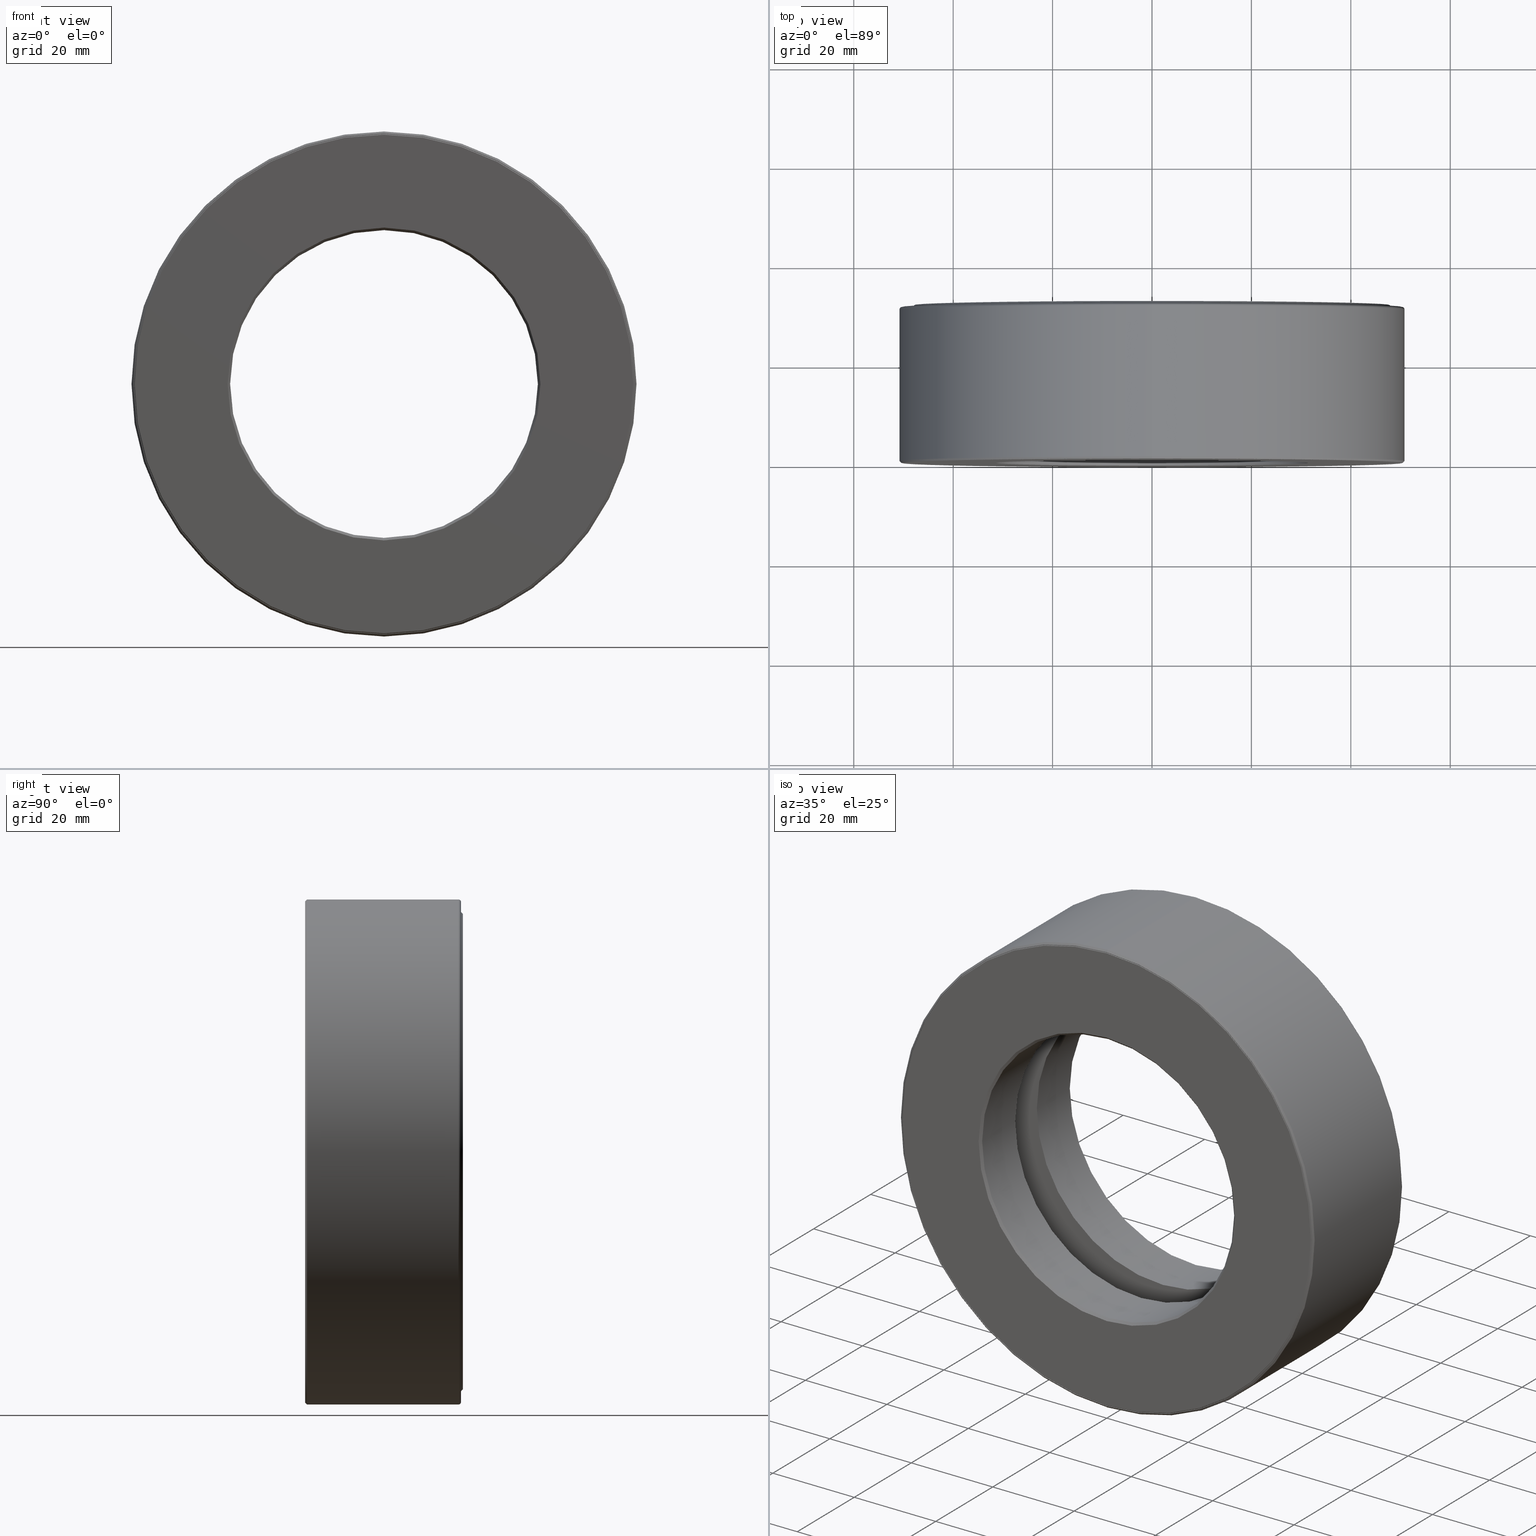
[diagram: canonical four-view strip — front | top / right | iso, engineering-drawing reading convention]
A machine part, canonical four-view strip (front | top / right | iso — engineering-drawing reading convention). The complete STEP part file that produces these views, byte-faithful:
ISO-10303-21;
HEADER;
FILE_DESCRIPTION (( 'STEP AP203' ),
    '1' );
FILE_NAME ('T-100-41.step',
    '2016-06-29T18:27:36',
    ( '' ),
    ( '' ),
    'SwSTEP 2.0',
    'SolidWorks 2016',
    '' );
FILE_SCHEMA (( 'CONFIG_CONTROL_DESIGN' ));
ENDSEC;

DATA;
#1 = PLANE ( 'NONE',  #319 ) ;
#2 = AXIS2_PLACEMENT_3D ( 'NONE', #472, #188, #515 ) ;
#3 = CARTESIAN_POINT ( 'NONE',  ( 0.0000000000000000000, 0.0000000000000000000, 0.0000000000000000000 ) ) ;
#4 = CARTESIAN_POINT ( 'NONE',  ( 0.0000000000000000000, 1.235000000000000100, 0.0000000000000000000 ) ) ;
#5 = AXIS2_PLACEMENT_3D ( 'NONE', #183, #466, #86 ) ;
#6 = DIRECTION ( 'NONE',  ( -0.0000000000000000000, 1.000000000000000000, -0.0000000000000000000 ) ) ;
#7 = DIRECTION ( 'NONE',  ( -0.0000000000000000000, 1.000000000000000000, -0.0000000000000000000 ) ) ;
#8 = FACE_BOUND ( 'NONE', #208, .T. ) ;
#9 = CARTESIAN_POINT ( 'NONE',  ( 0.0000000000000000000, 0.4749999999999999800, 1.520999999999999900 ) ) ;
#10 = DIRECTION ( 'NONE',  ( -0.0000000000000000000, 1.000000000000000000, -0.0000000000000000000 ) ) ;
#11 = ORIENTED_EDGE ( 'NONE', *, *, #304, .F. ) ;
#12 = DIRECTION ( 'NONE',  ( -0.0000000000000000000, 1.000000000000000000, -0.0000000000000000000 ) ) ;
#13 = CARTESIAN_POINT ( 'NONE',  ( 0.0000000000000000000, 1.235000000000000100, 1.980000000000000000 ) ) ;
#14 = DIRECTION ( 'NONE',  ( -0.0000000000000000000, 1.000000000000000000, 0.0000000000000000000 ) ) ;
#15 = FACE_OUTER_BOUND ( 'NONE', #377, .T. ) ;
#16 = CARTESIAN_POINT ( 'NONE',  ( 0.0000000000000000000, 1.250000000000000000, 0.0000000000000000000 ) ) ;
#17 = AXIS2_PLACEMENT_3D ( 'NONE', #475, #196, #285 ) ;
#18 = ORIENTED_EDGE ( 'NONE', *, *, #338, .T. ) ;
#19 = DIRECTION ( 'NONE',  ( -3.491481338843134500E-015, 0.0000000000000000000, -1.000000000000000000 ) ) ;
#20 = APPROVAL_PERSON_ORGANIZATION ( #218, #25, #468 ) ;
#21 = CARTESIAN_POINT ( 'NONE',  ( 0.0000000000000000000, 0.7749999999999999100, 0.0000000000000000000 ) ) ;
#22 = VERTEX_POINT ( 'NONE', #387 ) ;
#23 = CIRCLE ( 'NONE', #275, 1.218750000000000000 ) ;
#24 = ADVANCED_FACE ( 'NONE', ( #460, #233 ), #215, .F. ) ;
#25 = APPROVAL ( #321, 'UNSPECIFIED' ) ;
#26 = DIRECTION ( 'NONE',  ( -0.0000000000000000000, 1.000000000000000000, -0.0000000000000000000 ) ) ;
#27 = DIRECTION ( 'NONE',  ( 0.0000000000000000000, 0.0000000000000000000, -1.000000000000000000 ) ) ;
#28 = EDGE_LOOP ( 'NONE', ( #11 ) ) ;
#29 = EDGE_LOOP ( 'NONE', ( #525 ) ) ;
#30 = CARTESIAN_POINT ( 'NONE',  ( 0.0000000000000000000, 0.0000000000000000000, 0.0000000000000000000 ) ) ;
#31 = FACE_OUTER_BOUND ( 'NONE', #289, .T. ) ;
#32 = AXIS2_PLACEMENT_3D ( 'NONE', #95, #141, #138 ) ;
#33 = AXIS2_PLACEMENT_3D ( 'NONE', #334, #279, #516 ) ;
#34 = CLOSED_SHELL ( 'NONE', ( #489, #345, #24, #112, #353, #451, #60, #581, #301, #443, #529, #403, #526, #115, #72, #245 ) ) ;
#35 = AXIS2_PLACEMENT_3D ( 'NONE', #324, #281, #474 ) ;
#36 = SHAPE_DEFINITION_REPRESENTATION ( #543, #603 ) ;
#37 = FACE_OUTER_BOUND ( 'NONE', #247, .T. ) ;
#38 = DIRECTION ( 'NONE',  ( 0.0000000000000000000, 0.0000000000000000000, 1.000000000000000000 ) ) ;
#39 = CARTESIAN_POINT ( 'NONE',  ( 0.0000000000000000000, 0.0000000000000000000, 0.0000000000000000000 ) ) ;
#40 = DATE_TIME_ROLE ( 'classification_date' ) ;
#41 = ORIENTED_EDGE ( 'NONE', *, *, #130, .T. ) ;
#42 = ORIENTED_EDGE ( 'NONE', *, *, #542, .F. ) ;
#43 = APPLICATION_PROTOCOL_DEFINITION ( 'international standard', 'config_control_design', 1994, #274 ) ;
#44 = CARTESIAN_POINT ( 'NONE',  ( 0.0000000000000000000, 1.215000000000000100, 0.0000000000000000000 ) ) ;
#45 = FACE_BOUND ( 'NONE', #461, .T. ) ;
#46 = CARTESIAN_POINT ( 'NONE',  ( 0.0000000000000000000, 1.215000000000000100, 0.0000000000000000000 ) ) ;
#47 = AXIS2_PLACEMENT_3D ( 'NONE', #264, #367, #458 ) ;
#48 = ORIENTED_EDGE ( 'NONE', *, *, #431, .F. ) ;
#49 = CARTESIAN_POINT ( 'NONE',  ( 0.0000000000000000000, 1.215000000000000100, 0.0000000000000000000 ) ) ;
#50 = ORIENTED_EDGE ( 'NONE', *, *, #166, .F. ) ;
#51 = CARTESIAN_POINT ( 'NONE',  ( 0.0000000000000000000, 0.005000000000000393000, 0.0000000000000000000 ) ) ;
#52 = PERSON_AND_ORGANIZATION ( #399, #336 ) ;
#53 = FACE_OUTER_BOUND ( 'NONE', #364, .T. ) ;
#54 = DIRECTION ( 'NONE',  ( 0.0000000000000000000, 0.0000000000000000000, 1.000000000000000000 ) ) ;
#55 = DIRECTION ( 'NONE',  ( 0.0000000000000000000, 0.0000000000000000000, 1.000000000000000000 ) ) ;
#56 = SECURITY_CLASSIFICATION ( '', '', #94 ) ;
#57 = ORIENTED_EDGE ( 'NONE', *, *, #366, .T. ) ;
#58 = CARTESIAN_POINT ( 'NONE',  ( 0.0000000000000000000, 0.01499999999999984000, 1.999999999999999300 ) ) ;
#59 = CARTESIAN_POINT ( 'NONE',  ( 0.0000000000000000000, 0.4749999999999999200, 0.0000000000000000000 ) ) ;
#60 = ADVANCED_FACE ( 'NONE', ( #105, #346 ), #126, .T. ) ;
#61 = AXIS2_PLACEMENT_3D ( 'NONE', #491, #400, #254 ) ;
#62 = VERTEX_POINT ( 'NONE', #9 ) ;
#63 = CARTESIAN_POINT ( 'NONE',  ( 0.0000000000000000000, 0.4750000000000001400, 1.218750000000000000 ) ) ;
#64 = CIRCLE ( 'NONE', #368, 1.218750000000000000 ) ;
#65 = FACE_OUTER_BOUND ( 'NONE', #263, .T. ) ;
#66 = CARTESIAN_POINT ( 'NONE',  ( 0.0000000000000000000, 0.0000000000000000000, 0.0000000000000000000 ) ) ;
#67 = EDGE_LOOP ( 'NONE', ( #113 ) ) ;
#68 = ORIENTED_EDGE ( 'NONE', *, *, #104, .F. ) ;
#69 = EDGE_CURVE ( 'NONE', #203, #203, #394, .T. ) ;
#70 = DATE_AND_TIME ( #479, #557 ) ;
#71 = FACE_BOUND ( 'NONE', #531, .T. ) ;
#72 = ADVANCED_FACE ( 'NONE', ( #276, #246 ), #262, .F. ) ;
#73 = AXIS2_PLACEMENT_3D ( 'NONE', #493, #14, #347 ) ;
#74 = DIRECTION ( 'NONE',  ( 0.0000000000000000000, -0.0000000000000000000, -1.000000000000000000 ) ) ;
#75 = DIRECTION ( 'NONE',  ( -0.0000000000000000000, 1.000000000000000000, -0.0000000000000000000 ) ) ;
#76 = EDGE_LOOP ( 'NONE', ( #490 ) ) ;
#77 = PLANE ( 'NONE',  #257 ) ;
#78 = LOCAL_TIME ( 14, 27, 36.00000000000000000, #409 ) ;
#79 = FACE_OUTER_BOUND ( 'NONE', #270, .T. ) ;
#80 = DIRECTION ( 'NONE',  ( 0.0000000000000000000, -0.0000000000000000000, -1.000000000000000000 ) ) ;
#81 = CIRCLE ( 'NONE', #492, 1.972999999999999900 ) ;
#82 = EDGE_LOOP ( 'NONE', ( #605 ) ) ;
#83 = VERTEX_POINT ( 'NONE', #244 ) ;
#84 = CARTESIAN_POINT ( 'NONE',  ( 0.0000000000000000000, 0.7749999999999999100, 1.921000000000000000 ) ) ;
#85 = EDGE_CURVE ( 'NONE', #534, #534, #412, .T. ) ;
#86 = DIRECTION ( 'NONE',  ( 0.0000000000000000000, 0.0000000000000000000, 1.000000000000000000 ) ) ;
#87 = EDGE_LOOP ( 'NONE', ( #596 ) ) ;
#88 = CARTESIAN_POINT ( 'NONE',  ( 0.0000000000000000000, 0.0000000000000000000, 0.0000000000000000000 ) ) ;
#89 = ORIENTED_EDGE ( 'NONE', *, *, #85, .T. ) ;
#90 = CC_DESIGN_APPROVAL ( #25, ( #56 ) ) ;
#91 = CYLINDRICAL_SURFACE ( 'NONE', #465, 1.999999999999999800 ) ;
#92 = DIRECTION ( 'NONE',  ( 0.0000000000000000000, 0.0000000000000000000, 1.000000000000000000 ) ) ;
#93 = CIRCLE ( 'NONE', #548, 1.979999999999999500 ) ;
#94 = SECURITY_CLASSIFICATION_LEVEL ( 'unclassified' ) ;
#95 = CARTESIAN_POINT ( 'NONE',  ( 0.0000000000000000000, 0.0000000000000000000, 0.0000000000000000000 ) ) ;
#96 = MECHANICAL_CONTEXT ( 'NONE', #370, 'mechanical' ) ;
#97 = CARTESIAN_POINT ( 'NONE',  ( 0.0000000000000000000, 0.7749999999999999100, 0.0000000000000000000 ) ) ;
#98 = EDGE_LOOP ( 'NONE', ( #129 ) ) ;
#99 = EDGE_LOOP ( 'NONE', ( #352 ) ) ;
#100 = EDGE_LOOP ( 'NONE', ( #173 ) ) ;
#101 = EDGE_CURVE ( 'NONE', #239, #239, #225, .T. ) ;
#102 = LOCAL_TIME ( 14, 27, 36.00000000000000000, #292 ) ;
#103 = VERTEX_POINT ( 'NONE', #384 ) ;
#104 = EDGE_CURVE ( 'NONE', #311, #311, #585, .T. ) ;
#105 = FACE_OUTER_BOUND ( 'NONE', #28, .T. ) ;
#106 = DIRECTION ( 'NONE',  ( 0.0000000000000000000, 0.0000000000000000000, -1.000000000000000000 ) ) ;
#107 = PERSON_AND_ORGANIZATION ( #399, #336 ) ;
#108 = FACE_OUTER_BOUND ( 'NONE', #199, .T. ) ;
#109 = ADVANCED_FACE ( 'NONE', ( ), #145, .T. ) ;
#110 = DIRECTION ( 'NONE',  ( 6.982962677686269100E-015, -0.0000000000000000000, 1.000000000000000000 ) ) ;
#111 = EDGE_LOOP ( 'NONE', ( #426 ) ) ;
#112 = ADVANCED_FACE ( 'NONE', ( #385, #482 ), #1, .F. ) ;
#113 = ORIENTED_EDGE ( 'NONE', *, *, #69, .T. ) ;
#114 = DIRECTION ( 'NONE',  ( 0.0000000000000000000, 0.0000000000000000000, 1.000000000000000000 ) ) ;
#115 = ADVANCED_FACE ( 'NONE', ( #307, #332 ), #316, .F. ) ;
#116 = AXIS2_PLACEMENT_3D ( 'NONE', #117, #530, #579 ) ;
#117 = CARTESIAN_POINT ( 'NONE',  ( 0.0000000000000000000, -1.013771716398848000E-016, 0.0000000000000000000 ) ) ;
#118 = VERTEX_POINT ( 'NONE', #58 ) ;
#119 = CARTESIAN_POINT ( 'NONE',  ( 0.0000000000000000000, 0.7749999999999999100, 0.0000000000000000000 ) ) ;
#120 = DIRECTION ( 'NONE',  ( 0.0000000000000000000, 0.0000000000000000000, 1.000000000000000000 ) ) ;
#121 = EDGE_LOOP ( 'NONE', ( #139 ) ) ;
#122 = PERSON_AND_ORGANIZATION ( #399, #336 ) ;
#123 = FACE_OUTER_BOUND ( 'NONE', #586, .T. ) ;
#124 = PRODUCT_RELATED_PRODUCT_CATEGORY ( 'detail', '', ( #344 ) ) ;
#125 = PLANE ( 'NONE',  #375 ) ;
#126 = TOROIDAL_SURFACE ( 'NONE', #565, 1.980000000000000000, 0.02000000000000005900 ) ;
#127 = ORIENTED_EDGE ( 'NONE', *, *, #214, .T. ) ;
#128 = DIRECTION ( 'NONE',  ( -0.0000000000000000000, 1.000000000000000000, -0.0000000000000000000 ) ) ;
#129 = ORIENTED_EDGE ( 'NONE', *, *, #322, .F. ) ;
#130 = EDGE_CURVE ( 'NONE', #103, #103, #189, .T. ) ;
#131 = FACE_BOUND ( 'NONE', #576, .T. ) ;
#132 = PLANE ( 'NONE',  #335 ) ;
#133 = CLOSED_SHELL ( 'NONE', ( #109 ) ) ;
#134 = PERSON_AND_ORGANIZATION_ROLE ( 'creator' ) ;
#135 = LOCAL_TIME ( 14, 27, 36.00000000000000000, #259 ) ;
#136 = SPHERICAL_SURFACE ( 'NONE', #167, 0.2500000000000000600 ) ;
#137 = PERSON_AND_ORGANIZATION_ROLE ( 'classification_officer' ) ;
#138 = DIRECTION ( 'NONE',  ( 0.0000000000000000000, 0.0000000000000000000, 1.000000000000000000 ) ) ;
#139 = ORIENTED_EDGE ( 'NONE', *, *, #253, .F. ) ;
#140 = ORIENTED_EDGE ( 'NONE', *, *, #542, .T. ) ;
#141 = DIRECTION ( 'NONE',  ( -0.0000000000000000000, 1.000000000000000000, -0.0000000000000000000 ) ) ;
#142 = PERSON_AND_ORGANIZATION_ROLE ( 'design_supplier' ) ;
#143 = CIRCLE ( 'NONE', #604, 1.520999999999999900 ) ;
#144 = AXIS2_PLACEMENT_3D ( 'NONE', #66, #453, #165 ) ;
#145 = SPHERICAL_SURFACE ( 'NONE', #33, 0.2500000000000000600 ) ;
#146 = ORIENTED_EDGE ( 'NONE', *, *, #253, .T. ) ;
#147 = DIRECTION ( 'NONE',  ( 0.0000000000000000000, 0.0000000000000000000, 1.000000000000000000 ) ) ;
#148 = CARTESIAN_POINT ( 'NONE',  ( 1.721000000000000100, 0.6249999999999998900, -1.201767876829806400E-014 ) ) ;
#149 = APPROVAL_PERSON_ORGANIZATION ( #359, #152, #595 ) ;
#150 = DIRECTION ( 'NONE',  ( -0.0000000000000000000, 1.000000000000000000, -0.0000000000000000000 ) ) ;
#151 = FACE_OUTER_BOUND ( 'NONE', #121, .T. ) ;
#152 = APPROVAL ( #428, 'UNSPECIFIED' ) ;
#153 = CARTESIAN_POINT ( 'NONE',  ( 0.0000000000000000000, 1.250000000000000000, 1.885000000000000000 ) ) ;
#154 = ORIENTED_EDGE ( 'NONE', *, *, #255, .T. ) ;
#155 = DIRECTION ( 'NONE',  ( 0.0000000000000000000, 0.0000000000000000000, -1.000000000000000000 ) ) ;
#156 = ORIENTED_EDGE ( 'NONE', *, *, #284, .F. ) ;
#157 = CARTESIAN_POINT ( 'NONE',  ( 0.0000000000000000000, 1.250000000000000000, 1.238750000000000200 ) ) ;
#158 = ADVANCED_FACE ( 'NONE', ( #65, #545 ), #553, .T. ) ;
#159 = FACE_OUTER_BOUND ( 'NONE', #496, .T. ) ;
#160 = CARTESIAN_POINT ( 'NONE',  ( 0.0000000000000000000, 0.7749999999999999100, 1.520999999999999900 ) ) ;
#161 = DIRECTION ( 'NONE',  ( -0.0000000000000000000, 1.000000000000000000, -0.0000000000000000000 ) ) ;
#162 = AXIS2_PLACEMENT_3D ( 'NONE', #567, #376, #187 ) ;
#163 = PLANE ( 'NONE',  #297 ) ;
#164 = EDGE_LOOP ( 'NONE', ( #512 ) ) ;
#165 = DIRECTION ( 'NONE',  ( 0.0000000000000000000, 0.0000000000000000000, 1.000000000000000000 ) ) ;
#166 = EDGE_CURVE ( 'NONE', #372, #372, #81, .T. ) ;
#167 = AXIS2_PLACEMENT_3D ( 'NONE', #455, #27, #414 ) ;
#168 = FACE_OUTER_BOUND ( 'NONE', #100, .T. ) ;
#169 = ADVANCED_FACE ( 'NONE', ( #561, #437 ), #381, .T. ) ;
#170 = PLANE ( 'NONE',  #73 ) ;
#171 = ADVANCED_FACE ( 'NONE', ( ), #602, .T. ) ;
#172 = DIRECTION ( 'NONE',  ( 0.0000000000000000000, -0.0000000000000000000, -1.000000000000000000 ) ) ;
#173 = ORIENTED_EDGE ( 'NONE', *, *, #304, .T. ) ;
#174 = CIRCLE ( 'NONE', #190, 1.218750000000000000 ) ;
#175 = CARTESIAN_POINT ( 'NONE',  ( 0.0000000000000000000, 0.0000000000000000000, 0.0000000000000000000 ) ) ;
#176 = CARTESIAN_POINT ( 'NONE',  ( 0.0000000000000000000, 1.235000000000000100, 0.0000000000000000000 ) ) ;
#177 = ORIENTED_EDGE ( 'NONE', *, *, #271, .F. ) ;
#178 = DIRECTION ( 'NONE',  ( 0.0000000000000000000, 0.0000000000000000000, 1.000000000000000000 ) ) ;
#179 = ORIENTED_EDGE ( 'NONE', *, *, #448, .F. ) ;
#180 = PERSON_AND_ORGANIZATION ( #399, #336 ) ;
#181 = VERTEX_POINT ( 'NONE', #440 ) ;
#182 = FACE_OUTER_BOUND ( 'NONE', #82, .T. ) ;
#183 = CARTESIAN_POINT ( 'NONE',  ( 0.0000000000000000000, 0.7749999999999999100, 0.0000000000000000000 ) ) ;
#184 = CLOSED_SHELL ( 'NONE', ( #536 ) ) ;
#185 = EDGE_LOOP ( 'NONE', ( #89 ) ) ;
#186 = CIRCLE ( 'NONE', #528, 2.000000000000000000 ) ;
#187 = DIRECTION ( 'NONE',  ( 0.0000000000000000000, 0.0000000000000000000, 1.000000000000000000 ) ) ;
#188 = DIRECTION ( 'NONE',  ( -0.0000000000000000000, 1.000000000000000000, -0.0000000000000000000 ) ) ;
#189 = CIRCLE ( 'NONE', #351, 1.979999999999999500 ) ;
#190 = AXIS2_PLACEMENT_3D ( 'NONE', #250, #12, #386 ) ;
#191 = ORIENTED_EDGE ( 'NONE', *, *, #366, .F. ) ;
#192 = CARTESIAN_POINT ( 'NONE',  ( 0.0000000000000000000, 1.215000000000000100, 1.980000000000000000 ) ) ;
#193 = DIRECTION ( 'NONE',  ( 0.0000000000000000000, 0.0000000000000000000, 1.000000000000000000 ) ) ;
#194 = CALENDAR_DATE ( 2016, 29, 6 ) ;
#195 = AXIS2_PLACEMENT_3D ( 'NONE', #148, #110, #481 ) ;
#196 = DIRECTION ( 'NONE',  ( 0.0000000000000000000, -1.000000000000000000, 0.0000000000000000000 ) ) ;
#197 = CC_DESIGN_DATE_AND_TIME_ASSIGNMENT ( #70, #277, ( #434 ) ) ;
#198 = CARTESIAN_POINT ( 'NONE',  ( 0.0000000000000000000, 1.162000000000000600, 1.972999999999999900 ) ) ;
#199 = EDGE_LOOP ( 'NONE', ( #146 ) ) ;
#200 = ORIENTED_EDGE ( 'NONE', *, *, #101, .T. ) ;
#201 = CARTESIAN_POINT ( 'NONE',  ( 0.0000000000000000000, 1.215000000000000100, 2.000000000000000000 ) ) ;
#202 = DIRECTION ( 'NONE',  ( -0.0000000000000000000, 1.000000000000000000, -0.0000000000000000000 ) ) ;
#203 = VERTEX_POINT ( 'NONE', #192 ) ;
#204 = FACE_OUTER_BOUND ( 'NONE', #510, .T. ) ;
#205 = DIRECTION ( 'NONE',  ( 0.0000000000000000000, 0.0000000000000000000, 1.000000000000000000 ) ) ;
#206 = EDGE_LOOP ( 'NONE', ( #237 ) ) ;
#207 = DIRECTION ( 'NONE',  ( 0.0000000000000000000, 0.0000000000000000000, 1.000000000000000000 ) ) ;
#208 = EDGE_LOOP ( 'NONE', ( #363 ) ) ;
#209 = AXIS2_PLACEMENT_3D ( 'NONE', #520, #578, #447 ) ;
#210 = DIRECTION ( 'NONE',  ( 0.0000000000000000000, 0.0000000000000000000, 1.000000000000000000 ) ) ;
#211 = CALENDAR_DATE ( 2016, 29, 6 ) ;
#212 = VERTEX_POINT ( 'NONE', #594 ) ;
#213 = DIRECTION ( 'NONE',  ( -1.000000000000000000, 0.0000000000000000000, 3.491481338843134500E-015 ) ) ;
#214 = EDGE_CURVE ( 'NONE', #212, #212, #174, .T. ) ;
#215 = CYLINDRICAL_SURFACE ( 'NONE', #162, 1.979999999999999500 ) ;
#216 = EDGE_LOOP ( 'NONE', ( #156 ) ) ;
#217 = CARTESIAN_POINT ( 'NONE',  ( 0.0000000000000000000, 1.235000000000000100, 0.0000000000000000000 ) ) ;
#218 = PERSON_AND_ORGANIZATION ( #399, #336 ) ;
#219 = AXIS2_PLACEMENT_3D ( 'NONE', #175, #220, #318 ) ;
#220 = DIRECTION ( 'NONE',  ( -0.0000000000000000000, 1.000000000000000000, -0.0000000000000000000 ) ) ;
#221 = FACE_OUTER_BOUND ( 'NONE', #333, .T. ) ;
#222 = UNCERTAINTY_MEASURE_WITH_UNIT (LENGTH_MEASURE( 1.000000000000000100E-005 ), #231, 'distance_accuracy_value', 'NONE');
#223 = SPHERICAL_SURFACE ( 'NONE', #361, 0.2500000000000000600 ) ;
#224 = CARTESIAN_POINT ( 'NONE',  ( 0.0000000000000000000, 1.215000000000000100, 0.0000000000000000000 ) ) ;
#225 = CIRCLE ( 'NONE', #580, 1.919999999999999900 ) ;
#226 = EDGE_LOOP ( 'NONE', ( #326 ) ) ;
#227 = DIRECTION ( 'NONE',  ( 0.0000000000000000000, 0.0000000000000000000, 1.000000000000000000 ) ) ;
#228 = CYLINDRICAL_SURFACE ( 'NONE', #299, 1.218750000000000000 ) ;
#229 = CARTESIAN_POINT ( 'NONE',  ( 0.0000000000000000000, 0.7749999999999999100, 0.0000000000000000000 ) ) ;
#230 = PERSON_AND_ORGANIZATION_ROLE ( 'design_owner' ) ;
#231 =( CONVERSION_BASED_UNIT ( 'INCH', #420 ) LENGTH_UNIT ( ) NAMED_UNIT ( #290 ) );
#232 = PRODUCT_DEFINITION_FORMATION_WITH_SPECIFIED_SOURCE ( 'ANY', '', #344, .NOT_KNOWN. ) ;
#233 = FACE_OUTER_BOUND ( 'NONE', #67, .T. ) ;
#234 = DIRECTION ( 'NONE',  ( 1.000000000000000000, 0.0000000000000000000, 0.0000000000000000000 ) ) ;
#235 = CIRCLE ( 'NONE', #209, 1.979999999999999500 ) ;
#236 = APPLICATION_PROTOCOL_DEFINITION ( 'international standard', 'config_control_design', 1994, #370 ) ;
#237 = ORIENTED_EDGE ( 'NONE', *, *, #85, .F. ) ;
#238 = COORDINATED_UNIVERSAL_TIME_OFFSET ( 5, 0, .BEHIND. ) ;
#239 = VERTEX_POINT ( 'NONE', #337 ) ;
#240 = AXIS2_PLACEMENT_3D ( 'NONE', #417, #462, #178 ) ;
#241 = EDGE_CURVE ( 'NONE', #330, #330, #401, .T. ) ;
#242 = DIRECTION ( 'NONE',  ( -0.0000000000000000000, 1.000000000000000000, -0.0000000000000000000 ) ) ;
#243 = VERTEX_POINT ( 'NONE', #13 ) ;
#244 = CARTESIAN_POINT ( 'NONE',  ( 0.0000000000000000000, 0.4749999999999999200, 1.921000000000000000 ) ) ;
#245 = ADVANCED_FACE ( 'NONE', ( #45, #278 ), #568, .F. ) ;
#246 = FACE_OUTER_BOUND ( 'NONE', #445, .T. ) ;
#247 = EDGE_LOOP ( 'NONE', ( #50 ) ) ;
#248 = AXIS2_PLACEMENT_3D ( 'NONE', #391, #75, #120 ) ;
#249 = ORIENTED_EDGE ( 'NONE', *, *, #421, .T. ) ;
#250 = CARTESIAN_POINT ( 'NONE',  ( 0.0000000000000000000, 0.02000000000000005900, 0.0000000000000000000 ) ) ;
#251 = DIRECTION ( 'NONE',  ( 0.0000000000000000000, 0.0000000000000000000, 1.000000000000000000 ) ) ;
#252 = TOROIDAL_SURFACE ( 'NONE', #392, 1.721000000000000100, 0.2500000000000000600 ) ;
#253 = EDGE_CURVE ( 'NONE', #22, #22, #93, .T. ) ;
#254 = DIRECTION ( 'NONE',  ( 0.0000000000000000000, 0.0000000000000000000, 1.000000000000000000 ) ) ;
#255 = EDGE_CURVE ( 'NONE', #456, #456, #64, .T. ) ;
#256 = EDGE_LOOP ( 'NONE', ( #546 ) ) ;
#257 = AXIS2_PLACEMENT_3D ( 'NONE', #358, #267, #265 ) ;
#258 = DIRECTION ( 'NONE',  ( 0.0000000000000000000, -1.000000000000000000, 0.0000000000000000000 ) ) ;
#259 = COORDINATED_UNIVERSAL_TIME_OFFSET ( 5, 0, .BEHIND. ) ;
#260 = FACE_OUTER_BOUND ( 'NONE', #283, .T. ) ;
#261 = ADVANCED_FACE ( 'NONE', ( #360, #266 ), #252, .F. ) ;
#262 = CYLINDRICAL_SURFACE ( 'NONE', #32, 1.218750000000000000 ) ;
#263 = EDGE_LOOP ( 'NONE', ( #518 ) ) ;
#264 = CARTESIAN_POINT ( 'NONE',  ( 0.0000000000000000000, 0.4749999999999999200, 0.0000000000000000000 ) ) ;
#265 = DIRECTION ( 'NONE',  ( 0.0000000000000000000, 0.0000000000000000000, 1.000000000000000000 ) ) ;
#266 = FACE_OUTER_BOUND ( 'NONE', #206, .T. ) ;
#267 = DIRECTION ( 'NONE',  ( -0.0000000000000000000, 1.000000000000000000, 0.0000000000000000000 ) ) ;
#268 = AXIS2_PLACEMENT_3D ( 'NONE', #217, #538, #207 ) ;
#269 = DIRECTION ( 'NONE',  ( 0.0000000000000000000, 0.0000000000000000000, 1.000000000000000000 ) ) ;
#270 = EDGE_LOOP ( 'NONE', ( #177 ) ) ;
#271 = EDGE_CURVE ( 'NONE', #571, #571, #235, .T. ) ;
#272 = VERTEX_POINT ( 'NONE', #153 ) ;
#273 = FACE_OUTER_BOUND ( 'NONE', #497, .T. ) ;
#274 = APPLICATION_CONTEXT ( 'configuration controlled 3d designs of mechanical parts and assemblies' ) ;
#275 = AXIS2_PLACEMENT_3D ( 'NONE', #424, #554, #147 ) ;
#276 = FACE_OUTER_BOUND ( 'NONE', #563, .T. ) ;
#277 = DATE_TIME_ROLE ( 'creation_date' ) ;
#278 = FACE_OUTER_BOUND ( 'NONE', #282, .T. ) ;
#279 = DIRECTION ( 'NONE',  ( 1.000000000000000000, 0.0000000000000000000, -1.047444401652940000E-014 ) ) ;
#280 = EDGE_CURVE ( 'NONE', #302, #302, #143, .T. ) ;
#281 = DIRECTION ( 'NONE',  ( -0.0000000000000000000, 1.000000000000000000, -0.0000000000000000000 ) ) ;
#282 = EDGE_LOOP ( 'NONE', ( #298 ) ) ;
#283 = EDGE_LOOP ( 'NONE', ( #18 ) ) ;
#284 = EDGE_CURVE ( 'NONE', #469, #469, #514, .T. ) ;
#285 = DIRECTION ( 'NONE',  ( 0.0000000000000000000, -0.0000000000000000000, -1.000000000000000000 ) ) ;
#286 = CONICAL_SURFACE ( 'NONE', #248, 1.985000000000000100, 0.7853981633974311800 ) ;
#287 = AXIS2_PLACEMENT_3D ( 'NONE', #350, #402, #210 ) ;
#288 = DIRECTION ( 'NONE',  ( 0.0000000000000000000, 0.0000000000000000000, 1.000000000000000000 ) ) ;
#289 = EDGE_LOOP ( 'NONE', ( #471 ) ) ;
#290 = DIMENSIONAL_EXPONENTS ( 1.000000000000000000, 0.0000000000000000000, 0.0000000000000000000, 0.0000000000000000000, 0.0000000000000000000, 0.0000000000000000000, 0.0000000000000000000 ) ;
#291 = DIRECTION ( 'NONE',  ( 0.0000000000000000000, 0.0000000000000000000, 1.000000000000000000 ) ) ;
#292 = COORDINATED_UNIVERSAL_TIME_OFFSET ( 5, 0, .BEHIND. ) ;
#293 = CONICAL_SURFACE ( 'NONE', #116, 1.974999999999999900, 0.7853981633973798900 ) ;
#294 = ADVANCED_FACE ( 'NONE', ( #422, #15 ), #163, .T. ) ;
#295 = DIRECTION ( 'NONE',  ( 0.0000000000000000000, -1.000000000000000000, 0.0000000000000000000 ) ) ;
#296 = ADVANCED_FACE ( 'NONE', ( ), #223, .T. ) ;
#297 = AXIS2_PLACEMENT_3D ( 'NONE', #119, #258, #74 ) ;
#298 = ORIENTED_EDGE ( 'NONE', *, *, #448, .T. ) ;
#299 = AXIS2_PLACEMENT_3D ( 'NONE', #39, #508, #269 ) ;
#300 = CARTESIAN_POINT ( 'NONE',  ( 6.008839384149032200E-015, 0.6249999999999998900, 1.721000000000000100 ) ) ;
#301 = ADVANCED_FACE ( 'NONE', ( #123, #572 ), #286, .T. ) ;
#302 = VERTEX_POINT ( 'NONE', #160 ) ;
#303 = CIRCLE ( 'NONE', #478, 1.238750000000000200 ) ;
#304 = EDGE_CURVE ( 'NONE', #243, #243, #541, .T. ) ;
#305 = DIRECTION ( 'NONE',  ( -0.0000000000000000000, 1.000000000000000000, -0.0000000000000000000 ) ) ;
#306 = CARTESIAN_POINT ( 'NONE',  ( 0.0000000000000000000, 0.6249999999999998900, 0.0000000000000000000 ) ) ;
#307 = FACE_OUTER_BOUND ( 'NONE', #419, .T. ) ;
#308 = LOCAL_TIME ( 14, 27, 36.00000000000000000, #238 ) ;
#309 = CC_DESIGN_SECURITY_CLASSIFICATION ( #56, ( #232 ) ) ;
#310 = DIRECTION ( 'NONE',  ( -0.0000000000000000000, 1.000000000000000000, -0.0000000000000000000 ) ) ;
#311 = VERTEX_POINT ( 'NONE', #369 ) ;
#312 = FACE_BOUND ( 'NONE', #76, .T. ) ;
#313 = DIRECTION ( 'NONE',  ( -0.0000000000000000000, 1.000000000000000000, 0.0000000000000000000 ) ) ;
#314 = AXIS2_PLACEMENT_3D ( 'NONE', #449, #305, #251 ) ;
#315 = DIRECTION ( 'NONE',  ( 0.0000000000000000000, -1.000000000000000000, 0.0000000000000000000 ) ) ;
#316 = CONICAL_SURFACE ( 'NONE', #438, 1.218750000000000000, 0.7853981633974482800 ) ;
#317 = ORIENTED_EDGE ( 'NONE', *, *, #255, .F. ) ;
#318 = DIRECTION ( 'NONE',  ( 0.0000000000000000000, 0.0000000000000000000, 1.000000000000000000 ) ) ;
#319 = AXIS2_PLACEMENT_3D ( 'NONE', #46, #382, #430 ) ;
#320 = VERTEX_POINT ( 'NONE', #198 ) ;
#321 = APPROVAL_STATUS ( 'not_yet_approved' ) ;
#322 = EDGE_CURVE ( 'NONE', #320, #320, #416, .T. ) ;
#323 = CC_DESIGN_PERSON_AND_ORGANIZATION_ASSIGNMENT ( #380, #134, ( #232 ) ) ;
#324 = CARTESIAN_POINT ( 'NONE',  ( 0.0000000000000000000, 1.230000000000000000, 0.0000000000000000000 ) ) ;
#325 = ORIENTED_EDGE ( 'NONE', *, *, #280, .F. ) ;
#326 = ORIENTED_EDGE ( 'NONE', *, *, #408, .F. ) ;
#327 = MANIFOLD_SOLID_BREP ( 'Revolve2[2]', #441 ) ;
#328 = DIRECTION ( 'NONE',  ( 0.0000000000000000000, 0.0000000000000000000, 1.000000000000000000 ) ) ;
#329 = MANIFOLD_SOLID_BREP ( 'BALLS[2]', #406 ) ;
#330 = VERTEX_POINT ( 'NONE', #436 ) ;
#331 = FACE_OUTER_BOUND ( 'NONE', #606, .T. ) ;
#332 = FACE_BOUND ( 'NONE', #379, .T. ) ;
#333 = EDGE_LOOP ( 'NONE', ( #42 ) ) ;
#334 = CARTESIAN_POINT ( 'NONE',  ( -1.802651815244709700E-014, 0.6249999999999998900, -1.721000000000000100 ) ) ;
#335 = AXIS2_PLACEMENT_3D ( 'NONE', #459, #313, #498 ) ;
#336 = ORGANIZATION ( 'UNSPECIFIED', 'UNSPECIFIED', '' ) ;
#337 = CARTESIAN_POINT ( 'NONE',  ( 0.0000000000000000000, 1.215000000000000100, 1.919999999999999900 ) ) ;
#338 = EDGE_CURVE ( 'NONE', #272, #272, #527, .T. ) ;
#339 = EDGE_LOOP ( 'NONE', ( #200 ) ) ;
#340 = DIRECTION ( 'NONE',  ( 0.0000000000000000000, 0.0000000000000000000, 1.000000000000000000 ) ) ;
#341 = COORDINATED_UNIVERSAL_TIME_OFFSET ( 5, 0, .BEHIND. ) ;
#342 = CARTESIAN_POINT ( 'NONE',  ( 0.0000000000000000000, 0.0000000000000000000, 0.0000000000000000000 ) ) ;
#343 = FACE_BOUND ( 'NONE', #226, .T. ) ;
#344 = PRODUCT ( 'T-100-41', 'T-100-41', '', ( #96 ) ) ;
#345 = ADVANCED_FACE ( 'NONE', ( #343, #373 ), #355, .F. ) ;
#346 = FACE_OUTER_BOUND ( 'NONE', #532, .T. ) ;
#347 = DIRECTION ( 'NONE',  ( 0.0000000000000000000, 0.0000000000000000000, 1.000000000000000000 ) ) ;
#348 = ORIENTED_EDGE ( 'NONE', *, *, #130, .F. ) ;
#349 = AXIS2_PLACEMENT_3D ( 'NONE', #97, #429, #193 ) ;
#350 = CARTESIAN_POINT ( 'NONE',  ( 0.0000000000000000000, 0.01499999999999984000, 0.0000000000000000000 ) ) ;
#351 = AXIS2_PLACEMENT_3D ( 'NONE', #59, #10, #573 ) ;
#352 = ORIENTED_EDGE ( 'NONE', *, *, #421, .F. ) ;
#353 = ADVANCED_FACE ( 'NONE', ( #31, #159 ), #410, .F. ) ;
#354 = CC_DESIGN_PERSON_AND_ORGANIZATION_ASSIGNMENT ( #180, #142, ( #232 ) ) ;
#355 = PLANE ( 'NONE',  #464 ) ;
#356 = DESIGN_CONTEXT ( 'detailed design', #274, 'design' ) ;
#357 = APPROVAL_DATE_TIME ( #555, #25 ) ;
#358 = CARTESIAN_POINT ( 'NONE',  ( -2.348623450603529400E-032, -5.068858581994238200E-017, 0.0000000000000000000 ) ) ;
#359 = PERSON_AND_ORGANIZATION ( #399, #336 ) ;
#360 = FACE_OUTER_BOUND ( 'NONE', #476, .T. ) ;
#361 = AXIS2_PLACEMENT_3D ( 'NONE', #300, #213, #19 ) ;
#362 = DIRECTION ( 'NONE',  ( -0.0000000000000000000, 1.000000000000000000, -0.0000000000000000000 ) ) ;
#363 = ORIENTED_EDGE ( 'NONE', *, *, #271, .T. ) ;
#364 = EDGE_LOOP ( 'NONE', ( #68 ) ) ;
#365 = DIRECTION ( 'NONE',  ( 0.0000000000000000000, 0.0000000000000000000, 1.000000000000000000 ) ) ;
#366 = EDGE_CURVE ( 'NONE', #118, #118, #499, .T. ) ;
#367 = DIRECTION ( 'NONE',  ( -0.0000000000000000000, 1.000000000000000000, -0.0000000000000000000 ) ) ;
#368 = AXIS2_PLACEMENT_3D ( 'NONE', #439, #150, #55 ) ;
#369 = CARTESIAN_POINT ( 'NONE',  ( 0.0000000000000000000, -1.024442997624098700E-016, 1.985000000000000100 ) ) ;
#370 = APPLICATION_CONTEXT ( 'configuration controlled 3d designs of mechanical parts and assemblies' ) ;
#371 = CALENDAR_DATE ( 2016, 29, 6 ) ;
#372 = VERTEX_POINT ( 'NONE', #517 ) ;
#373 = FACE_OUTER_BOUND ( 'NONE', #591, .T. ) ;
#374 = DIRECTION ( 'NONE',  ( 0.0000000000000000000, 0.0000000000000000000, 1.000000000000000000 ) ) ;
#375 = AXIS2_PLACEMENT_3D ( 'NONE', #229, #315, #80 ) ;
#376 = DIRECTION ( 'NONE',  ( -0.0000000000000000000, 1.000000000000000000, -0.0000000000000000000 ) ) ;
#377 = EDGE_LOOP ( 'NONE', ( #325 ) ) ;
#378 = EDGE_LOOP ( 'NONE', ( #425 ) ) ;
#379 = EDGE_LOOP ( 'NONE', ( #127 ) ) ;
#380 = PERSON_AND_ORGANIZATION ( #399, #336 ) ;
#381 = CYLINDRICAL_SURFACE ( 'NONE', #487, 1.972999999999999900 ) ;
#382 = DIRECTION ( 'NONE',  ( -0.0000000000000000000, 1.000000000000000000, 0.0000000000000000000 ) ) ;
#383 = DIRECTION ( 'NONE',  ( -0.0000000000000000000, 1.000000000000000000, -0.0000000000000000000 ) ) ;
#384 = CARTESIAN_POINT ( 'NONE',  ( 0.0000000000000000000, 0.4749999999999999200, 1.979999999999999500 ) ) ;
#385 = FACE_OUTER_BOUND ( 'NONE', #432, .T. ) ;
#386 = DIRECTION ( 'NONE',  ( 0.0000000000000000000, 0.0000000000000000000, 1.000000000000000000 ) ) ;
#387 = CARTESIAN_POINT ( 'NONE',  ( 0.0000000000000000000, 0.005000000000000393000, 1.979999999999999500 ) ) ;
#388 = CARTESIAN_POINT ( 'NONE',  ( 0.0000000000000000000, 0.7749999999999999100, 0.0000000000000000000 ) ) ;
#389 = CYLINDRICAL_SURFACE ( 'NONE', #219, 1.979999999999999500 ) ;
#390 = CARTESIAN_POINT ( 'NONE',  ( 0.0000000000000000000, -1.013771716398848000E-016, 1.974999999999999900 ) ) ;
#391 = CARTESIAN_POINT ( 'NONE',  ( 0.0000000000000000000, -1.024442997624098700E-016, 0.0000000000000000000 ) ) ;
#392 = AXIS2_PLACEMENT_3D ( 'NONE', #570, #242, #54 ) ;
#393 = DIRECTION ( 'NONE',  ( 0.0000000000000000000, -1.000000000000000000, 0.0000000000000000000 ) ) ;
#394 = CIRCLE ( 'NONE', #473, 1.980000000000000000 ) ;
#395 = CARTESIAN_POINT ( 'NONE',  ( 0.0000000000000000000, 0.0000000000000000000, 1.238750000000000000 ) ) ;
#396 = ADVANCED_FACE ( 'NONE', ( #260, #131 ), #170, .T. ) ;
#397 = ORIENTED_EDGE ( 'NONE', *, *, #214, .F. ) ;
#398 = CARTESIAN_POINT ( 'NONE',  ( 0.0000000000000000000, 0.02000000000000005900, 0.0000000000000000000 ) ) ;
#399 = PERSON ( 'UNSPECIFIED', 'UNSPECIFIED', 'UNSPECIFIED', ('UNSPECIFIED'), ('UNSPECIFIED'), ('UNSPECIFIED') ) ;
#400 = DIRECTION ( 'NONE',  ( -0.0000000000000000000, 1.000000000000000000, -0.0000000000000000000 ) ) ;
#401 = CIRCLE ( 'NONE', #500, 1.919999999999999900 ) ;
#402 = DIRECTION ( 'NONE',  ( -0.0000000000000000000, 1.000000000000000000, -0.0000000000000000000 ) ) ;
#403 = ADVANCED_FACE ( 'NONE', ( #151, #312 ), #293, .T. ) ;
#404 = CC_DESIGN_PERSON_AND_ORGANIZATION_ASSIGNMENT ( #450, #230, ( #344 ) ) ;
#405 = DIRECTION ( 'NONE',  ( 0.0000000000000000000, 0.0000000000000000000, 1.000000000000000000 ) ) ;
#406 = CLOSED_SHELL ( 'NONE', ( #171 ) ) ;
#407 = MANIFOLD_SOLID_BREP ( 'Revolve3', #184 ) ;
#408 = EDGE_CURVE ( 'NONE', #83, #83, #457, .T. ) ;
#409 = COORDINATED_UNIVERSAL_TIME_OFFSET ( 5, 0, .BEHIND. ) ;
#410 = CYLINDRICAL_SURFACE ( 'NONE', #144, 1.919999999999999900 ) ;
#411 = CARTESIAN_POINT ( 'NONE',  ( 0.0000000000000000000, 0.4749999999999999200, 0.0000000000000000000 ) ) ;
#412 = CIRCLE ( 'NONE', #349, 1.921000000000000000 ) ;
#413 = AXIS2_PLACEMENT_3D ( 'NONE', #176, #549, #172 ) ;
#414 = DIRECTION ( 'NONE',  ( 1.000000000000000000, 0.0000000000000000000, 0.0000000000000000000 ) ) ;
#415 = PLANE ( 'NONE',  #413 ) ;
#416 = CIRCLE ( 'NONE', #314, 1.972999999999999900 ) ;
#417 = CARTESIAN_POINT ( 'NONE',  ( 0.0000000000000000000, 0.4749999999999999800, 0.0000000000000000000 ) ) ;
#418 = DIRECTION ( 'NONE',  ( 0.0000000000000000000, 0.0000000000000000000, 1.000000000000000000 ) ) ;
#419 = EDGE_LOOP ( 'NONE', ( #48 ) ) ;
#420 = LENGTH_MEASURE_WITH_UNIT ( LENGTH_MEASURE( 0.02539999999999999900 ), #506 );
#421 = EDGE_CURVE ( 'NONE', #463, #463, #186, .T. ) ;
#422 = FACE_BOUND ( 'NONE', #502, .T. ) ;
#423 = APPROVAL_STATUS ( 'not_yet_approved' ) ;
#424 = CARTESIAN_POINT ( 'NONE',  ( 0.0000000000000000000, 1.230000000000000000, 0.0000000000000000000 ) ) ;
#425 = ORIENTED_EDGE ( 'NONE', *, *, #338, .F. ) ;
#426 = ORIENTED_EDGE ( 'NONE', *, *, #104, .T. ) ;
#427 = CIRCLE ( 'NONE', #582, 1.238750000000000000 ) ;
#428 = APPROVAL_STATUS ( 'not_yet_approved' ) ;
#429 = DIRECTION ( 'NONE',  ( -0.0000000000000000000, 1.000000000000000000, -0.0000000000000000000 ) ) ;
#430 = DIRECTION ( 'NONE',  ( 0.0000000000000000000, 0.0000000000000000000, 1.000000000000000000 ) ) ;
#431 = EDGE_CURVE ( 'NONE', #504, #504, #427, .T. ) ;
#432 = EDGE_LOOP ( 'NONE', ( #484 ) ) ;
#433 = DIRECTION ( 'NONE',  ( -0.0000000000000000000, 1.000000000000000000, -0.0000000000000000000 ) ) ;
#434 = PRODUCT_DEFINITION ( 'UNKNOWN', '', #232, #356 ) ;
#435 = APPROVAL_PERSON_ORGANIZATION ( #107, #444, #558 ) ;
#436 = CARTESIAN_POINT ( 'NONE',  ( 0.0000000000000000000, 1.235000000000000100, 1.919999999999999900 ) ) ;
#437 = FACE_OUTER_BOUND ( 'NONE', #98, .T. ) ;
#438 = AXIS2_PLACEMENT_3D ( 'NONE', #398, #393, #106 ) ;
#439 = CARTESIAN_POINT ( 'NONE',  ( 0.0000000000000000000, 0.4750000000000001400, 0.0000000000000000000 ) ) ;
#440 = CARTESIAN_POINT ( 'NONE',  ( 0.0000000000000000000, 0.7749999999999999100, 1.218750000000000000 ) ) ;
#441 = CLOSED_SHELL ( 'NONE', ( #454, #261, #294, #583, #587, #396, #158, #169 ) ) ;
#442 = FACE_BOUND ( 'NONE', #87, .T. ) ;
#443 = ADVANCED_FACE ( 'NONE', ( #53, #8 ), #132, .F. ) ;
#444 = APPROVAL ( #423, 'UNSPECIFIED' ) ;
#445 = EDGE_LOOP ( 'NONE', ( #154 ) ) ;
#446 = CLOSED_SHELL ( 'NONE', ( #296 ) ) ;
#447 = DIRECTION ( 'NONE',  ( 0.0000000000000000000, 0.0000000000000000000, 1.000000000000000000 ) ) ;
#448 = EDGE_CURVE ( 'NONE', #62, #62, #480, .T. ) ;
#449 = CARTESIAN_POINT ( 'NONE',  ( 0.0000000000000000000, 1.162000000000000600, 0.0000000000000000000 ) ) ;
#450 = PERSON_AND_ORGANIZATION ( #399, #336 ) ;
#451 = ADVANCED_FACE ( 'NONE', ( #71, #168 ), #415, .F. ) ;
#452 = EDGE_CURVE ( 'NONE', #593, #593, #303, .T. ) ;
#453 = DIRECTION ( 'NONE',  ( -0.0000000000000000000, 1.000000000000000000, -0.0000000000000000000 ) ) ;
#454 = ADVANCED_FACE ( 'NONE', ( #523, #37 ), #125, .T. ) ;
#455 = CARTESIAN_POINT ( 'NONE',  ( -1.721000000000000100, 0.6249999999999998900, 0.0000000000000000000 ) ) ;
#456 = VERTEX_POINT ( 'NONE', #63 ) ;
#457 = CIRCLE ( 'NONE', #47, 1.921000000000000000 ) ;
#458 = DIRECTION ( 'NONE',  ( 0.0000000000000000000, 0.0000000000000000000, 1.000000000000000000 ) ) ;
#459 = CARTESIAN_POINT ( 'NONE',  ( 1.061356477083622700E-033, -1.023510978080598500E-016, 0.0000000000000000000 ) ) ;
#460 = FACE_OUTER_BOUND ( 'NONE', #547, .T. ) ;
#461 = EDGE_LOOP ( 'NONE', ( #317 ) ) ;
#462 = DIRECTION ( 'NONE',  ( -0.0000000000000000000, 1.000000000000000000, -0.0000000000000000000 ) ) ;
#463 = VERTEX_POINT ( 'NONE', #201 ) ;
#464 = AXIS2_PLACEMENT_3D ( 'NONE', #411, #295, #486 ) ;
#465 = AXIS2_PLACEMENT_3D ( 'NONE', #88, #503, #598 ) ;
#466 = DIRECTION ( 'NONE',  ( -0.0000000000000000000, 1.000000000000000000, -0.0000000000000000000 ) ) ;
#467 = AXIS2_PLACEMENT_3D ( 'NONE', #524, #569, #155 ) ;
#468 = APPROVAL_ROLE ( '' ) ;
#469 = VERTEX_POINT ( 'NONE', #390 ) ;
#470 = CIRCLE ( 'NONE', #5, 1.218750000000000000 ) ;
#471 = ORIENTED_EDGE ( 'NONE', *, *, #101, .F. ) ;
#472 = CARTESIAN_POINT ( 'NONE',  ( 0.0000000000000000000, -1.024442997624098700E-016, 0.0000000000000000000 ) ) ;
#473 = AXIS2_PLACEMENT_3D ( 'NONE', #49, #383, #328 ) ;
#474 = DIRECTION ( 'NONE',  ( 0.0000000000000000000, 0.0000000000000000000, 1.000000000000000000 ) ) ;
#475 = CARTESIAN_POINT ( 'NONE',  ( -2.146613394525272800E-016, 0.4750000000000000300, 0.0000000000000000000 ) ) ;
#476 = EDGE_LOOP ( 'NONE', ( #592 ) ) ;
#477 = ORIENTED_EDGE ( 'NONE', *, *, #452, .F. ) ;
#478 = AXIS2_PLACEMENT_3D ( 'NONE', #590, #310, #365 ) ;
#479 = CALENDAR_DATE ( 2016, 29, 6 ) ;
#480 = CIRCLE ( 'NONE', #240, 1.520999999999999900 ) ;
#481 = DIRECTION ( 'NONE',  ( -1.000000000000000000, 0.0000000000000000000, 6.982962677686269100E-015 ) ) ;
#482 = FACE_BOUND ( 'NONE', #339, .T. ) ;
#483 = DIRECTION ( 'NONE',  ( -0.0000000000000000000, 1.000000000000000000, -0.0000000000000000000 ) ) ;
#484 = ORIENTED_EDGE ( 'NONE', *, *, #69, .F. ) ;
#485 = ORIENTED_EDGE ( 'NONE', *, *, #241, .F. ) ;
#486 = DIRECTION ( 'NONE',  ( 0.0000000000000000000, -0.0000000000000000000, -1.000000000000000000 ) ) ;
#487 = AXIS2_PLACEMENT_3D ( 'NONE', #342, #7, #291 ) ;
#488 = AXIS2_PLACEMENT_3D ( 'NONE', #3, #38, #234 ) ;
#489 = ADVANCED_FACE ( 'NONE', ( #273, #182 ), #535, .F. ) ;
#490 = ORIENTED_EDGE ( 'NONE', *, *, #284, .T. ) ;
#491 = CARTESIAN_POINT ( 'NONE',  ( 0.0000000000000000000, -1.013771716398848000E-016, 0.0000000000000000000 ) ) ;
#492 = AXIS2_PLACEMENT_3D ( 'NONE', #388, #483, #205 ) ;
#493 = CARTESIAN_POINT ( 'NONE',  ( 0.0000000000000000000, 1.250000000000000000, 0.0000000000000000000 ) ) ;
#494 = CONICAL_SURFACE ( 'NONE', #35, 1.218750000000000000, 0.7853981633974517200 ) ;
#495 = FACE_OUTER_BOUND ( 'NONE', #99, .T. ) ;
#496 = EDGE_LOOP ( 'NONE', ( #501 ) ) ;
#497 = EDGE_LOOP ( 'NONE', ( #179 ) ) ;
#498 = DIRECTION ( 'NONE',  ( 0.0000000000000000000, 0.0000000000000000000, 1.000000000000000000 ) ) ;
#499 = CIRCLE ( 'NONE', #287, 1.999999999999999300 ) ;
#500 = AXIS2_PLACEMENT_3D ( 'NONE', #4, #6, #288 ) ;
#501 = ORIENTED_EDGE ( 'NONE', *, *, #241, .T. ) ;
#502 = EDGE_LOOP ( 'NONE', ( #140 ) ) ;
#503 = DIRECTION ( 'NONE',  ( -0.0000000000000000000, 1.000000000000000000, -0.0000000000000000000 ) ) ;
#504 = VERTEX_POINT ( 'NONE', #395 ) ;
#505 = FACE_OUTER_BOUND ( 'NONE', #29, .T. ) ;
#506 =( LENGTH_UNIT ( ) NAMED_UNIT ( * ) SI_UNIT ( $, .METRE. ) );
#507 =( GEOMETRIC_REPRESENTATION_CONTEXT ( 3 ) GLOBAL_UNCERTAINTY_ASSIGNED_CONTEXT ( ( #222 ) ) GLOBAL_UNIT_ASSIGNED_CONTEXT ( ( #231, #597, #556 ) ) REPRESENTATION_CONTEXT ( 'NONE', 'WORKASPACE' ) );
#508 = DIRECTION ( 'NONE',  ( -0.0000000000000000000, 1.000000000000000000, -0.0000000000000000000 ) ) ;
#509 = ORIENTED_EDGE ( 'NONE', *, *, #452, .T. ) ;
#510 = EDGE_LOOP ( 'NONE', ( #509 ) ) ;
#511 = CARTESIAN_POINT ( 'NONE',  ( 0.0000000000000000000, 1.230000000000000000, 1.218750000000000000 ) ) ;
#512 = ORIENTED_EDGE ( 'NONE', *, *, #575, .F. ) ;
#513 = DATE_AND_TIME ( #599, #135 ) ;
#514 = CIRCLE ( 'NONE', #61, 1.974999999999999900 ) ;
#515 = DIRECTION ( 'NONE',  ( 0.0000000000000000000, 0.0000000000000000000, 1.000000000000000000 ) ) ;
#516 = DIRECTION ( 'NONE',  ( 1.047444401652940000E-014, 0.0000000000000000000, 1.000000000000000000 ) ) ;
#517 = CARTESIAN_POINT ( 'NONE',  ( 0.0000000000000000000, 0.7749999999999999100, 1.972999999999999900 ) ) ;
#518 = ORIENTED_EDGE ( 'NONE', *, *, #322, .T. ) ;
#519 = CC_DESIGN_APPROVAL ( #444, ( #434 ) ) ;
#520 = CARTESIAN_POINT ( 'NONE',  ( 0.0000000000000000000, -1.022578958537098100E-016, 0.0000000000000000000 ) ) ;
#521 = APPROVAL_DATE_TIME ( #588, #444 ) ;
#522 = MANIFOLD_SOLID_BREP ( 'BALLS[3]', #133 ) ;
#523 = FACE_BOUND ( 'NONE', #185, .T. ) ;
#524 = CARTESIAN_POINT ( 'NONE',  ( 0.0000000000000000000, 1.250000000000000000, 0.0000000000000000000 ) ) ;
#525 = ORIENTED_EDGE ( 'NONE', *, *, #575, .T. ) ;
#526 = ADVANCED_FACE ( 'NONE', ( #589, #442 ), #77, .F. ) ;
#527 = CIRCLE ( 'NONE', #540, 1.885000000000000000 ) ;
#528 = AXIS2_PLACEMENT_3D ( 'NONE', #224, #26, #544 ) ;
#529 = ADVANCED_FACE ( 'NONE', ( #79, #108 ), #389, .F. ) ;
#530 = DIRECTION ( 'NONE',  ( -0.0000000000000000000, 1.000000000000000000, -0.0000000000000000000 ) ) ;
#531 = EDGE_LOOP ( 'NONE', ( #485 ) ) ;
#532 = EDGE_LOOP ( 'NONE', ( #249 ) ) ;
#533 = DATE_AND_TIME ( #211, #102 ) ;
#534 = VERTEX_POINT ( 'NONE', #84 ) ;
#535 = TOROIDAL_SURFACE ( 'NONE', #559, 1.721000000000000100, 0.2500000000000000000 ) ;
#536 = ADVANCED_FACE ( 'NONE', ( ), #136, .T. ) ;
#537 = CC_DESIGN_PERSON_AND_ORGANIZATION_ASSIGNMENT ( #122, #137, ( #56 ) ) ;
#538 = DIRECTION ( 'NONE',  ( -0.0000000000000000000, 1.000000000000000000, -0.0000000000000000000 ) ) ;
#539 = MANIFOLD_SOLID_BREP ( 'BALLS[1]', #446 ) ;
#540 = AXIS2_PLACEMENT_3D ( 'NONE', #16, #584, #114 ) ;
#541 = CIRCLE ( 'NONE', #268, 1.980000000000000000 ) ;
#542 = EDGE_CURVE ( 'NONE', #181, #181, #470, .T. ) ;
#543 = PRODUCT_DEFINITION_SHAPE ( 'NONE', 'NONE',  #434 ) ;
#544 = DIRECTION ( 'NONE',  ( 0.0000000000000000000, 0.0000000000000000000, 1.000000000000000000 ) ) ;
#545 = FACE_BOUND ( 'NONE', #378, .T. ) ;
#546 = ORIENTED_EDGE ( 'NONE', *, *, #166, .T. ) ;
#547 = EDGE_LOOP ( 'NONE', ( #348 ) ) ;
#548 = AXIS2_PLACEMENT_3D ( 'NONE', #51, #202, #340 ) ;
#549 = DIRECTION ( 'NONE',  ( 0.0000000000000000000, -1.000000000000000000, 0.0000000000000000000 ) ) ;
#550 = APPROVAL_DATE_TIME ( #513, #152 ) ;
#551 = CC_DESIGN_PERSON_AND_ORGANIZATION_ASSIGNMENT ( #52, #600, ( #434 ) ) ;
#552 = FACE_BOUND ( 'NONE', #164, .T. ) ;
#553 = CONICAL_SURFACE ( 'NONE', #467, 1.885000000000000000, 0.7853981633974513900 ) ;
#554 = DIRECTION ( 'NONE',  ( -0.0000000000000000000, 1.000000000000000000, -0.0000000000000000000 ) ) ;
#555 = DATE_AND_TIME ( #371, #308 ) ;
#556 =( NAMED_UNIT ( * ) SI_UNIT ( $, .STERADIAN. ) SOLID_ANGLE_UNIT ( ) );
#557 = LOCAL_TIME ( 14, 27, 36.00000000000000000, #341 ) ;
#558 = APPROVAL_ROLE ( '' ) ;
#559 = AXIS2_PLACEMENT_3D ( 'NONE', #306, #362, #227 ) ;
#560 = CARTESIAN_POINT ( 'NONE',  ( 0.0000000000000000000, 1.215000000000000100, 0.0000000000000000000 ) ) ;
#561 = FACE_OUTER_BOUND ( 'NONE', #256, .T. ) ;
#562 = CC_DESIGN_APPROVAL ( #152, ( #232 ) ) ;
#563 = EDGE_LOOP ( 'NONE', ( #397 ) ) ;
#564 = DIRECTION ( 'NONE',  ( -0.0000000000000000000, 1.000000000000000000, -0.0000000000000000000 ) ) ;
#565 = AXIS2_PLACEMENT_3D ( 'NONE', #44, #564, #92 ) ;
#566 = VERTEX_POINT ( 'NONE', #511 ) ;
#567 = CARTESIAN_POINT ( 'NONE',  ( 0.0000000000000000000, 0.0000000000000000000, 0.0000000000000000000 ) ) ;
#568 = PLANE ( 'NONE',  #17 ) ;
#569 = DIRECTION ( 'NONE',  ( 0.0000000000000000000, -1.000000000000000000, 0.0000000000000000000 ) ) ;
#570 = CARTESIAN_POINT ( 'NONE',  ( 0.0000000000000000000, 0.6249999999999998900, 0.0000000000000000000 ) ) ;
#571 = VERTEX_POINT ( 'NONE', #574 ) ;
#572 = FACE_BOUND ( 'NONE', #111, .T. ) ;
#573 = DIRECTION ( 'NONE',  ( 0.0000000000000000000, 0.0000000000000000000, 1.000000000000000000 ) ) ;
#574 = CARTESIAN_POINT ( 'NONE',  ( 0.0000000000000000000, -1.022578958537098100E-016, 1.979999999999999500 ) ) ;
#575 = EDGE_CURVE ( 'NONE', #566, #566, #23, .T. ) ;
#576 = EDGE_LOOP ( 'NONE', ( #477 ) ) ;
#577 = MANIFOLD_SOLID_BREP ( 'Revolve2[1]', #34 ) ;
#578 = DIRECTION ( 'NONE',  ( -0.0000000000000000000, 1.000000000000000000, -0.0000000000000000000 ) ) ;
#579 = DIRECTION ( 'NONE',  ( 0.0000000000000000000, 0.0000000000000000000, 1.000000000000000000 ) ) ;
#580 = AXIS2_PLACEMENT_3D ( 'NONE', #560, #433, #374 ) ;
#581 = ADVANCED_FACE ( 'NONE', ( #495, #331 ), #91, .T. ) ;
#582 = AXIS2_PLACEMENT_3D ( 'NONE', #30, #128, #418 ) ;
#583 = ADVANCED_FACE ( 'NONE', ( #505, #221 ), #228, .F. ) ;
#584 = DIRECTION ( 'NONE',  ( -0.0000000000000000000, 1.000000000000000000, -0.0000000000000000000 ) ) ;
#585 = CIRCLE ( 'NONE', #2, 1.985000000000000100 ) ;
#586 = EDGE_LOOP ( 'NONE', ( #191 ) ) ;
#587 = ADVANCED_FACE ( 'NONE', ( #204, #552 ), #494, .F. ) ;
#588 = DATE_AND_TIME ( #194, #78 ) ;
#589 = FACE_OUTER_BOUND ( 'NONE', #216, .T. ) ;
#590 = CARTESIAN_POINT ( 'NONE',  ( 0.0000000000000000000, 1.250000000000000000, 0.0000000000000000000 ) ) ;
#591 = EDGE_LOOP ( 'NONE', ( #41 ) ) ;
#592 = ORIENTED_EDGE ( 'NONE', *, *, #280, .T. ) ;
#593 = VERTEX_POINT ( 'NONE', #157 ) ;
#594 = CARTESIAN_POINT ( 'NONE',  ( 0.0000000000000000000, 0.02000000000000005900, 1.218750000000000000 ) ) ;
#595 = APPROVAL_ROLE ( '' ) ;
#596 = ORIENTED_EDGE ( 'NONE', *, *, #431, .T. ) ;
#597 =( NAMED_UNIT ( * ) PLANE_ANGLE_UNIT ( ) SI_UNIT ( $, .RADIAN. ) );
#598 = DIRECTION ( 'NONE',  ( 0.0000000000000000000, 0.0000000000000000000, 1.000000000000000000 ) ) ;
#599 = CALENDAR_DATE ( 2016, 29, 6 ) ;
#600 = PERSON_AND_ORGANIZATION_ROLE ( 'creator' ) ;
#601 = CC_DESIGN_DATE_AND_TIME_ASSIGNMENT ( #533, #40, ( #56 ) ) ;
#602 = SPHERICAL_SURFACE ( 'NONE', #195, 0.2500000000000000600 ) ;
#603 = ADVANCED_BREP_SHAPE_REPRESENTATION ( 'T-100-41', ( #577, #327, #407, #539, #329, #522, #488 ), #507 ) ;
#604 = AXIS2_PLACEMENT_3D ( 'NONE', #21, #161, #405 ) ;
#605 = ORIENTED_EDGE ( 'NONE', *, *, #408, .T. ) ;
#606 = EDGE_LOOP ( 'NONE', ( #57 ) ) ;
ENDSEC;
END-ISO-10303-21;
